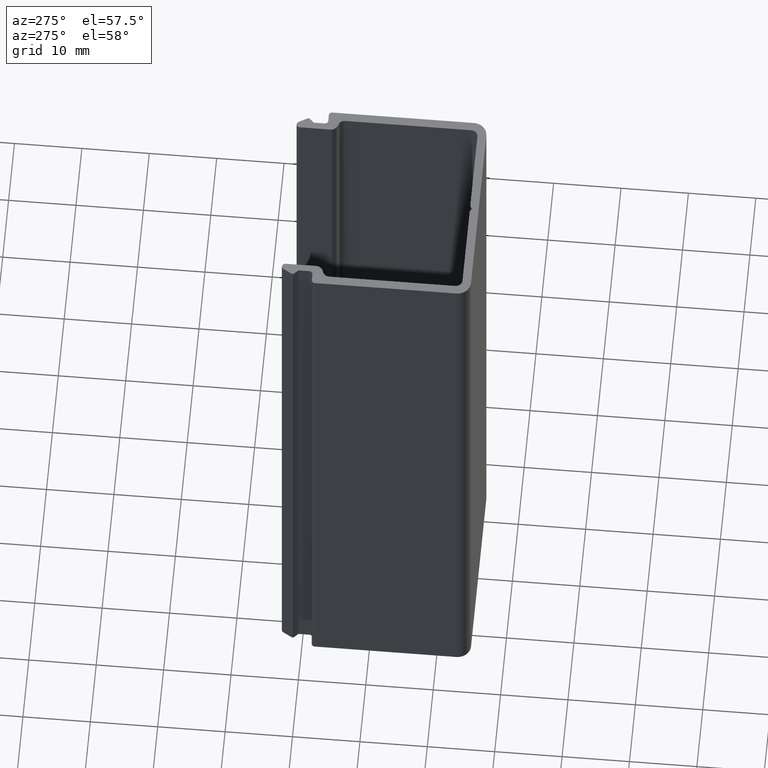
[diagram: clean part render]
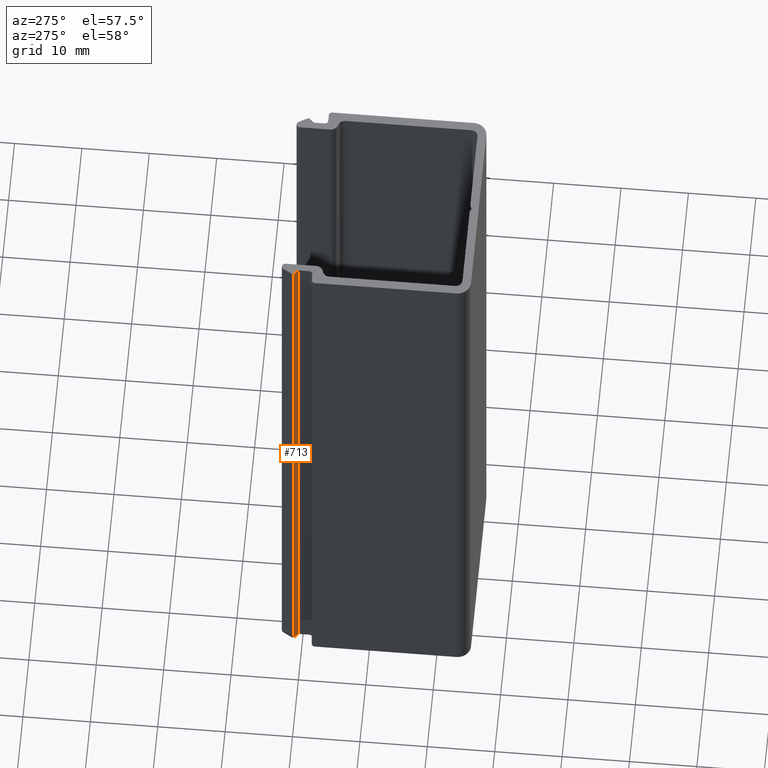
[diagram: same view with one face highlighted and labeled with its STEP entity id]
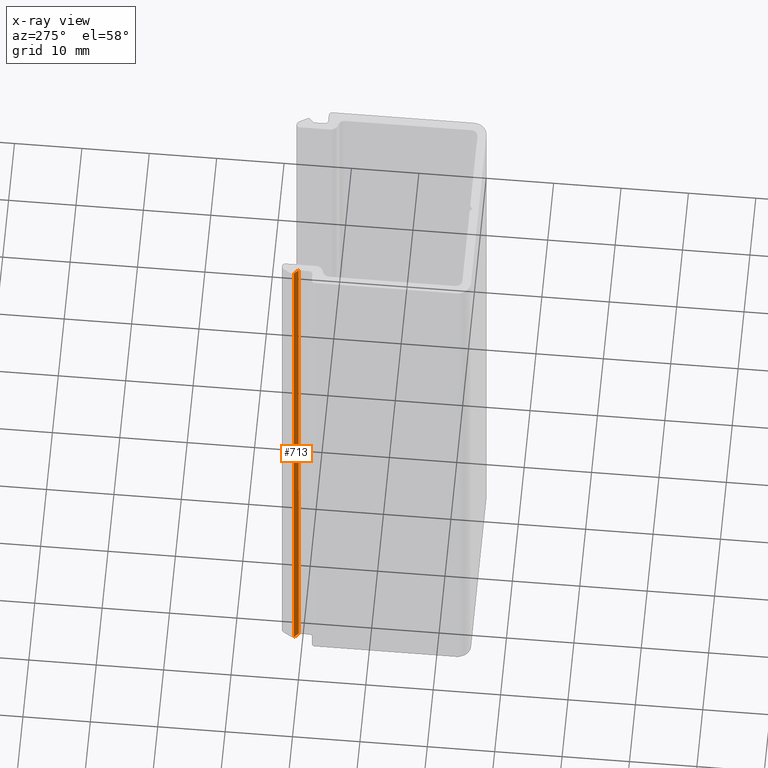
[diagram: x-ray of the same camera — body ghosted, the highlighted face saturated]
A machine part, auxiliary view. The second image highlights one B-rep face of the part: STEP entity #713.
The next image is the same camera in x-ray: the body ghosted, the highlighted face saturated — about 0% of this face is hidden behind the body in this view.
In plain terms, the highlighted planar face has unit normal (-0.7071, -0.7071, 0).
Its self-contained STEP definition (entity closure, byte-faithful):
#87=FACE_OUTER_BOUND('',#124,.T.);
#124=EDGE_LOOP('',(#554,#555,#556,#557));
#186=LINE('',#1156,#259);
#188=LINE('',#1160,#261);
#189=LINE('',#1162,#262);
#190=LINE('',#1163,#263);
#259=VECTOR('',#940,100.);
#261=VECTOR('',#944,0.8651188574061);
#262=VECTOR('',#945,100.);
#263=VECTOR('',#946,0.8651188574061);
#331=VERTEX_POINT('',#1153);
#332=VERTEX_POINT('',#1155);
#333=VERTEX_POINT('',#1159);
#334=VERTEX_POINT('',#1161);
#424=EDGE_CURVE('',#331,#332,#186,.T.);
#426=EDGE_CURVE('',#333,#331,#188,.T.);
#427=EDGE_CURVE('',#333,#334,#189,.T.);
#428=EDGE_CURVE('',#332,#334,#190,.T.);
#554=ORIENTED_EDGE('',*,*,#426,.F.);
#555=ORIENTED_EDGE('',*,*,#427,.T.);
#556=ORIENTED_EDGE('',*,*,#428,.F.);
#557=ORIENTED_EDGE('',*,*,#424,.F.);
#681=PLANE('',#774);
#713=ADVANCED_FACE('',(#87),#681,.T.);
#774=AXIS2_PLACEMENT_3D('',#1158,#942,#943);
#940=DIRECTION('',(0.,0.,-1.));
#942=DIRECTION('center_axis',(-0.707106781187016,-0.707106781186079,0.));
#943=DIRECTION('ref_axis',(0.707106781186079,-0.707106781187016,0.));
#944=DIRECTION('',(0.707106781186079,-0.707106781187016,0.));
#945=DIRECTION('',(0.,0.,-1.));
#946=DIRECTION('',(-0.707106781186079,0.707106781187016,0.));
#1153=CARTESIAN_POINT('',(-13.0002071634821,10.5944712321948,100.));
#1155=CARTESIAN_POINT('',(-13.0002071634821,10.5944712321948,0.));
#1156=CARTESIAN_POINT('',(-13.0002071634821,10.5944712321948,0.));
#1158=CARTESIAN_POINT('Origin',(-13.6119385740859,11.2062026427994,0.));
#1159=CARTESIAN_POINT('',(-13.6119385740859,11.2062026427994,100.));
#1160=CARTESIAN_POINT('',(-7.40740326986912,5.00166733857433,100.));
#1161=CARTESIAN_POINT('',(-13.6119385740859,11.2062026427994,0.));
#1162=CARTESIAN_POINT('',(-13.6119385740859,11.2062026427994,0.));
#1163=CARTESIAN_POINT('',(-7.40740326986912,5.00166733857433,0.));